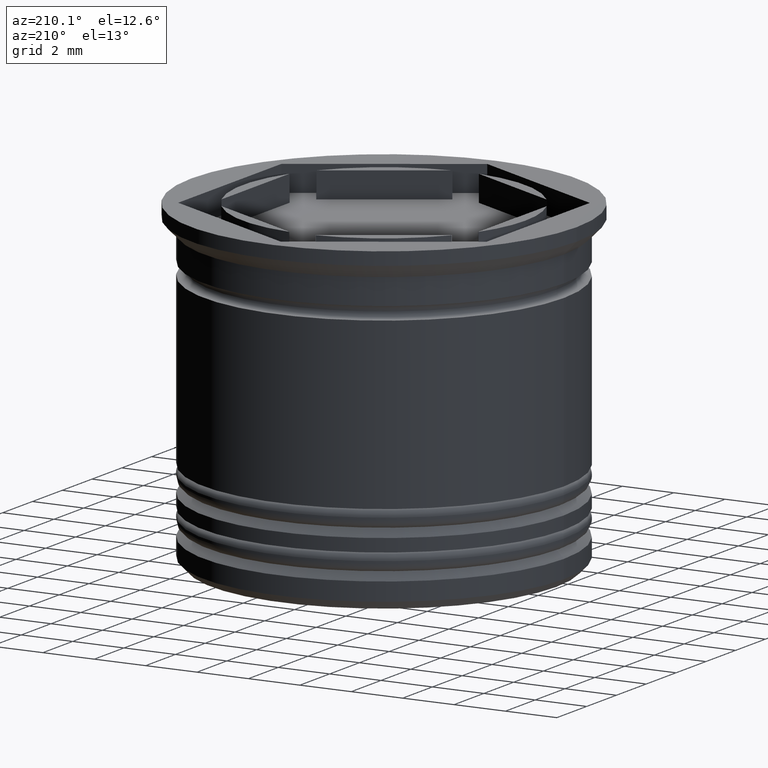
[diagram: clean part render]
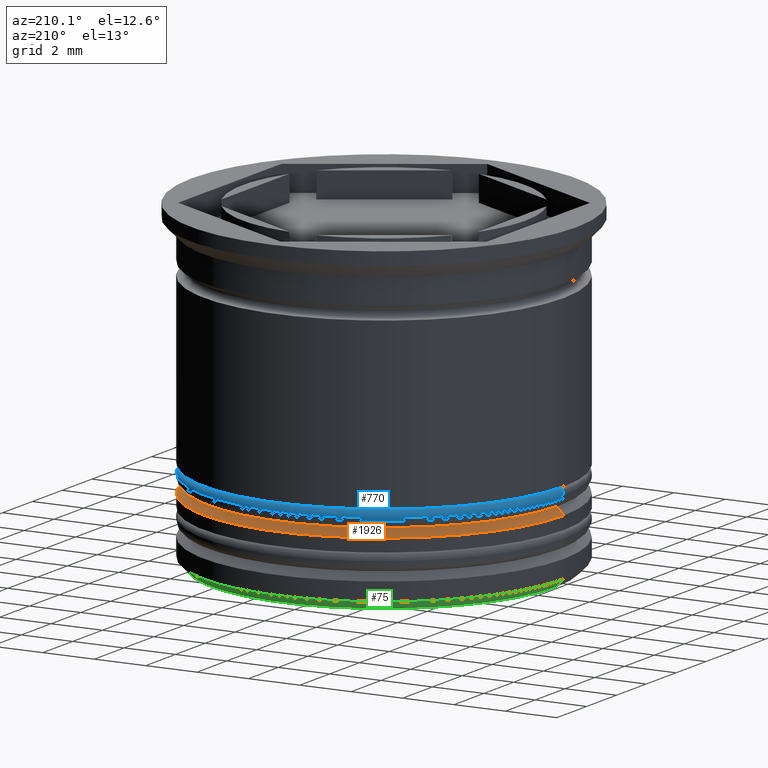
[diagram: same view with three faces highlighted in distinct colors, each labeled with its STEP entity id]
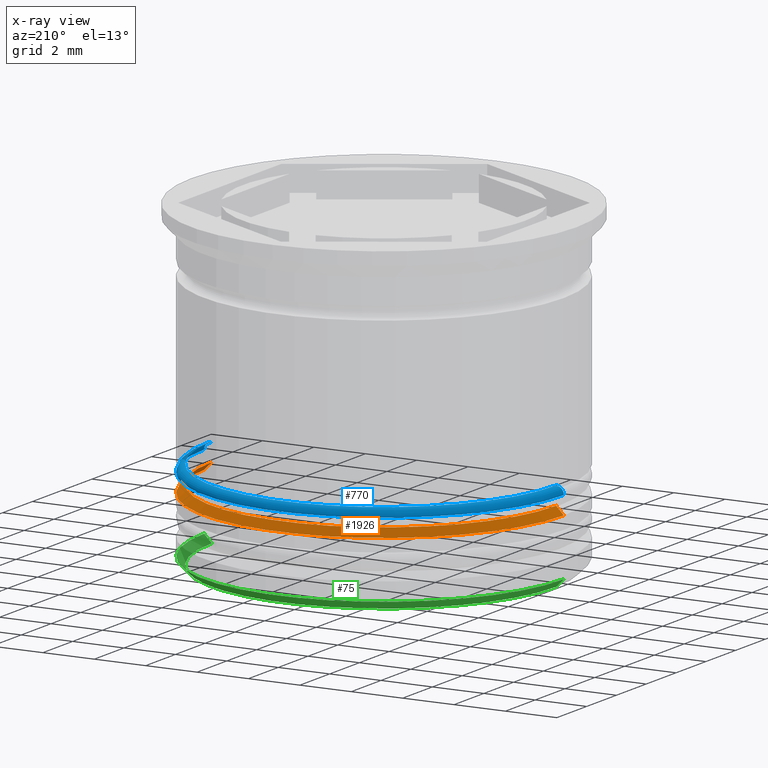
[diagram: x-ray of the same camera — body ghosted, the three highlighted faces saturated]
A machine part, auxiliary view with three faces highlighted in distinct colors.
The next image is the same camera in x-ray (body ghosted, the three faces saturated) — at least one of them is partly hidden behind the body in this view.
Their STEP definitions:

[orange] entity #1926 — the highlighted conical surface has half-angle 45 deg.
#24 = CARTESIAN_POINT ( 'NONE',  ( 6.700000000000001066, 0.000000000000000000, -9.700000000000008171 ) ) ;
#48 = VERTEX_POINT ( 'NONE', #1595 ) ;
#77 = CONICAL_SURFACE ( 'NONE', #108, 6.499999999999992006, 0.7853981633974533860 ) ;
#84 = DIRECTION ( 'NONE',  ( 0.000000000000000000, 0.000000000000000000, -1.000000000000000000 ) ) ;
#106 = CIRCLE ( 'NONE', #357, 7.000000000000000888 ) ;
#108 = AXIS2_PLACEMENT_3D ( 'NONE', #1490, #1634, #1030 ) ;
#115 = ORIENTED_EDGE ( 'NONE', *, *, #1254, .F. ) ;
#321 = VECTOR ( 'NONE', #791, 1000.000000000000000 ) ;
#330 = ORIENTED_EDGE ( 'NONE', *, *, #1076, .T. ) ;
#357 = AXIS2_PLACEMENT_3D ( 'NONE', #388, #84, #1801 ) ;
#388 = CARTESIAN_POINT ( 'NONE',  ( 0.000000000000000000, 0.000000000000000000, -10.00000000000000533 ) ) ;
#452 = AXIS2_PLACEMENT_3D ( 'NONE', #557, #1303, #761 ) ;
#464 = VERTEX_POINT ( 'NONE', #544 ) ;
#544 = CARTESIAN_POINT ( 'NONE',  ( -7.000000000000000888, 8.572527594031474176E-16, -10.00000000000000533 ) ) ;
#557 = CARTESIAN_POINT ( 'NONE',  ( 0.000000000000000000, 0.000000000000000000, -9.700000000000008171 ) ) ;
#679 = EDGE_CURVE ( 'NONE', #48, #464, #981, .T. ) ;
#704 = VERTEX_POINT ( 'NONE', #24 ) ;
#715 = VECTOR ( 'NONE', #1414, 1000.000000000000000 ) ;
#761 = DIRECTION ( 'NONE',  ( -1.000000000000000000, 0.000000000000000000, 0.000000000000000000 ) ) ;
#791 = DIRECTION ( 'NONE',  ( -0.7071067811865512365, 0.000000000000000000, -0.7071067811865439090 ) ) ;
#925 = LINE ( 'NONE', #1543, #715 ) ;
#951 = EDGE_LOOP ( 'NONE', ( #115, #330, #1380, #1175 ) ) ;
#981 = LINE ( 'NONE', #1271, #321 ) ;
#1030 = DIRECTION ( 'NONE',  ( -1.000000000000000000, 0.000000000000000000, 0.000000000000000000 ) ) ;
#1076 = EDGE_CURVE ( 'NONE', #704, #1382, #925, .T. ) ;
#1175 = ORIENTED_EDGE ( 'NONE', *, *, #679, .F. ) ;
#1254 = EDGE_CURVE ( 'NONE', #704, #48, #1325, .T. ) ;
#1271 = CARTESIAN_POINT ( 'NONE',  ( -6.499999999999992006, 0.000000000000000000, -9.500000000000001776 ) ) ;
#1303 = DIRECTION ( 'NONE',  ( -0.000000000000000000, -0.000000000000000000, 1.000000000000000000 ) ) ;
#1325 = CIRCLE ( 'NONE', #452, 6.700000000000001066 ) ;
#1380 = ORIENTED_EDGE ( 'NONE', *, *, #1410, .F. ) ;
#1382 = VERTEX_POINT ( 'NONE', #1669 ) ;
#1410 = EDGE_CURVE ( 'NONE', #464, #1382, #106, .T. ) ;
#1414 = DIRECTION ( 'NONE',  ( 0.7071067811865512365, 8.659560562354978464E-17, -0.7071067811865439090 ) ) ;
#1490 = CARTESIAN_POINT ( 'NONE',  ( 0.000000000000000000, 0.000000000000000000, -9.500000000000001776 ) ) ;
#1543 = CARTESIAN_POINT ( 'NONE',  ( 6.499999999999992006, 7.960204194457785616E-16, -9.500000000000001776 ) ) ;
#1595 = CARTESIAN_POINT ( 'NONE',  ( -6.700000000000001066, 8.205133554287267548E-16, -9.700000000000008171 ) ) ;
#1634 = DIRECTION ( 'NONE',  ( 0.000000000000000000, 0.000000000000000000, -1.000000000000000000 ) ) ;
#1669 = CARTESIAN_POINT ( 'NONE',  ( 7.000000000000000888, 0.000000000000000000, -10.00000000000000533 ) ) ;
#1782 = FACE_OUTER_BOUND ( 'NONE', #951, .T. ) ;
#1801 = DIRECTION ( 'NONE',  ( -1.000000000000000000, 0.000000000000000000, 0.000000000000000000 ) ) ;
#1926 = ADVANCED_FACE ( 'NONE', ( #1782 ), #77, .T. ) ;

[blue] entity #770 — the highlighted toroidal blend (fillet) surface has major radius 6.7 mm and minor (blend) radius 0.3 mm.
#81 = DIRECTION ( 'NONE',  ( 0.000000000000000000, 0.000000000000000000, -1.000000000000000000 ) ) ;
#160 = ORIENTED_EDGE ( 'NONE', *, *, #1320, .F. ) ;
#161 = AXIS2_PLACEMENT_3D ( 'NONE', #1279, #81, #565 ) ;
#186 = CIRCLE ( 'NONE', #1739, 0.2999999999999999334 ) ;
#197 = ORIENTED_EDGE ( 'NONE', *, *, #1745, .T. ) ;
#200 = DIRECTION ( 'NONE',  ( -1.000000000000000000, -1.224646799147353207E-16, 0.000000000000000000 ) ) ;
#224 = CIRCLE ( 'NONE', #644, 7.000000000000000888 ) ;
#227 = AXIS2_PLACEMENT_3D ( 'NONE', #999, #504, #200 ) ;
#242 = EDGE_CURVE ( 'NONE', #299, #541, #186, .T. ) ;
#272 = CARTESIAN_POINT ( 'NONE',  ( 6.700000000000001066, 8.388830574159370862E-16, -9.000000000000001776 ) ) ;
#299 = VERTEX_POINT ( 'NONE', #935 ) ;
#359 = VERTEX_POINT ( 'NONE', #272 ) ;
#383 = CARTESIAN_POINT ( 'NONE',  ( 0.000000000000000000, 0.000000000000000000, -9.000000000000001776 ) ) ;
#400 = DIRECTION ( 'NONE',  ( 0.000000000000000000, 0.000000000000000000, -1.000000000000000000 ) ) ;
#504 = DIRECTION ( 'NONE',  ( -1.224646799147353207E-16, 1.000000000000000000, 0.000000000000000000 ) ) ;
#522 = ORIENTED_EDGE ( 'NONE', *, *, #242, .F. ) ;
#541 = VERTEX_POINT ( 'NONE', #1965 ) ;
#565 = DIRECTION ( 'NONE',  ( -1.000000000000000000, 0.000000000000000000, 0.000000000000000000 ) ) ;
#644 = AXIS2_PLACEMENT_3D ( 'NONE', #1181, #400, #1316 ) ;
#676 = TOROIDAL_SURFACE ( 'NONE', #161, 6.700000000000001066, 0.2999999999999999889 ) ;
#770 = ADVANCED_FACE ( 'NONE', ( #973 ), #676, .T. ) ;
#859 = DIRECTION ( 'NONE',  ( -1.000000000000000000, 0.000000000000000000, 0.000000000000000000 ) ) ;
#867 = CARTESIAN_POINT ( 'NONE',  ( 7.000000000000000888, 0.000000000000000000, -9.299999999999998934 ) ) ;
#879 = VERTEX_POINT ( 'NONE', #867 ) ;
#915 = AXIS2_PLACEMENT_3D ( 'NONE', #383, #980, #859 ) ;
#935 = CARTESIAN_POINT ( 'NONE',  ( -6.700000000000001066, 0.000000000000000000, -9.000000000000001776 ) ) ;
#973 = FACE_OUTER_BOUND ( 'NONE', #1530, .T. ) ;
#980 = DIRECTION ( 'NONE',  ( -0.000000000000000000, -0.000000000000000000, 1.000000000000000000 ) ) ;
#999 = CARTESIAN_POINT ( 'NONE',  ( 6.700000000000001066, 8.205133554287267548E-16, -9.299999999999998934 ) ) ;
#1038 = CIRCLE ( 'NONE', #915, 6.700000000000001066 ) ;
#1170 = CARTESIAN_POINT ( 'NONE',  ( -6.700000000000001066, 0.000000000000000000, -9.299999999999998934 ) ) ;
#1181 = CARTESIAN_POINT ( 'NONE',  ( 0.000000000000000000, 0.000000000000000000, -9.299999999999998934 ) ) ;
#1194 = CIRCLE ( 'NONE', #227, 0.2999999999999999334 ) ;
#1279 = CARTESIAN_POINT ( 'NONE',  ( 0.000000000000000000, 0.000000000000000000, -9.299999999999998934 ) ) ;
#1315 = DIRECTION ( 'NONE',  ( 0.000000000000000000, 0.000000000000000000, -1.000000000000000000 ) ) ;
#1316 = DIRECTION ( 'NONE',  ( -1.000000000000000000, 0.000000000000000000, 0.000000000000000000 ) ) ;
#1320 = EDGE_CURVE ( 'NONE', #541, #879, #224, .T. ) ;
#1411 = ORIENTED_EDGE ( 'NONE', *, *, #1712, .F. ) ;
#1530 = EDGE_LOOP ( 'NONE', ( #1411, #197, #160, #522 ) ) ;
#1614 = DIRECTION ( 'NONE',  ( -0.000000000000000000, -1.000000000000000000, -0.000000000000000000 ) ) ;
#1712 = EDGE_CURVE ( 'NONE', #359, #299, #1038, .T. ) ;
#1739 = AXIS2_PLACEMENT_3D ( 'NONE', #1170, #1614, #1315 ) ;
#1745 = EDGE_CURVE ( 'NONE', #359, #879, #1194, .T. ) ;
#1965 = CARTESIAN_POINT ( 'NONE',  ( -7.000000000000000888, 8.572527594031474176E-16, -9.299999999999998934 ) ) ;

[green] entity #75 — the highlighted conical surface has half-angle 45 deg.
#2 = CARTESIAN_POINT ( 'NONE',  ( 0.000000000000000000, 0.000000000000000000, -12.19999999999999574 ) ) ;
#33 = FACE_OUTER_BOUND ( 'NONE', #483, .T. ) ;
#75 = ADVANCED_FACE ( 'NONE', ( #33 ), #446, .T. ) ;
#78 = VERTEX_POINT ( 'NONE', #344 ) ;
#152 = CARTESIAN_POINT ( 'NONE',  ( 7.000000000000000888, 0.000000000000000000, -12.19999999999999574 ) ) ;
#226 = VECTOR ( 'NONE', #1506, 1000.000000000000000 ) ;
#236 = ORIENTED_EDGE ( 'NONE', *, *, #1437, .T. ) ;
#320 = ORIENTED_EDGE ( 'NONE', *, *, #337, .F. ) ;
#337 = EDGE_CURVE ( 'NONE', #369, #1857, #577, .T. ) ;
#344 = CARTESIAN_POINT ( 'NONE',  ( 6.699999999999996625, 0.000000000000000000, -12.50000000000000000 ) ) ;
#369 = VERTEX_POINT ( 'NONE', #152 ) ;
#425 = VECTOR ( 'NONE', #818, 1000.000000000000000 ) ;
#446 = CONICAL_SURFACE ( 'NONE', #1450, 7.000000000000000888, 0.7853981633974468357 ) ;
#468 = DIRECTION ( 'NONE',  ( -0.000000000000000000, -0.000000000000000000, 1.000000000000000000 ) ) ;
#483 = EDGE_LOOP ( 'NONE', ( #822, #236, #320, #1969 ) ) ;
#488 = AXIS2_PLACEMENT_3D ( 'NONE', #1368, #1358, #567 ) ;
#546 = CARTESIAN_POINT ( 'NONE',  ( -7.000000000000000888, 8.572527594031474176E-16, -12.19999999999999574 ) ) ;
#567 = DIRECTION ( 'NONE',  ( -1.000000000000000000, 0.000000000000000000, 0.000000000000000000 ) ) ;
#577 = CIRCLE ( 'NONE', #1155, 7.000000000000000888 ) ;
#635 = DIRECTION ( 'NONE',  ( -0.000000000000000000, -0.000000000000000000, 1.000000000000000000 ) ) ;
#818 = DIRECTION ( 'NONE',  ( 0.7071067811865465735, 0.000000000000000000, 0.7071067811865485719 ) ) ;
#822 = ORIENTED_EDGE ( 'NONE', *, *, #1486, .F. ) ;
#863 = CARTESIAN_POINT ( 'NONE',  ( -7.000000000000000888, 8.572527594031472204E-16, -12.19999999999999574 ) ) ;
#982 = CARTESIAN_POINT ( 'NONE',  ( 0.000000000000000000, 0.000000000000000000, -12.19999999999999574 ) ) ;
#1155 = AXIS2_PLACEMENT_3D ( 'NONE', #2, #468, #1367 ) ;
#1164 = LINE ( 'NONE', #863, #226 ) ;
#1221 = CARTESIAN_POINT ( 'NONE',  ( -6.699999999999996625, 8.388830574159365932E-16, -12.50000000000000000 ) ) ;
#1358 = DIRECTION ( 'NONE',  ( 0.000000000000000000, 0.000000000000000000, -1.000000000000000000 ) ) ;
#1367 = DIRECTION ( 'NONE',  ( -1.000000000000000000, 0.000000000000000000, 0.000000000000000000 ) ) ;
#1368 = CARTESIAN_POINT ( 'NONE',  ( 0.000000000000000000, 0.000000000000000000, -12.50000000000000000 ) ) ;
#1437 = EDGE_CURVE ( 'NONE', #1663, #1857, #1164, .T. ) ;
#1450 = AXIS2_PLACEMENT_3D ( 'NONE', #982, #635, #1905 ) ;
#1486 = EDGE_CURVE ( 'NONE', #1663, #78, #1495, .T. ) ;
#1495 = CIRCLE ( 'NONE', #488, 6.699999999999996625 ) ;
#1506 = DIRECTION ( 'NONE',  ( -0.7071067811865465735, 8.659560562354920532E-17, 0.7071067811865485719 ) ) ;
#1580 = LINE ( 'NONE', #1612, #425 ) ;
#1612 = CARTESIAN_POINT ( 'NONE',  ( 7.000000000000000888, 0.000000000000000000, -12.19999999999999574 ) ) ;
#1663 = VERTEX_POINT ( 'NONE', #1221 ) ;
#1755 = EDGE_CURVE ( 'NONE', #78, #369, #1580, .T. ) ;
#1857 = VERTEX_POINT ( 'NONE', #546 ) ;
#1905 = DIRECTION ( 'NONE',  ( 1.000000000000000000, 0.000000000000000000, 0.000000000000000000 ) ) ;
#1969 = ORIENTED_EDGE ( 'NONE', *, *, #1755, .F. ) ;